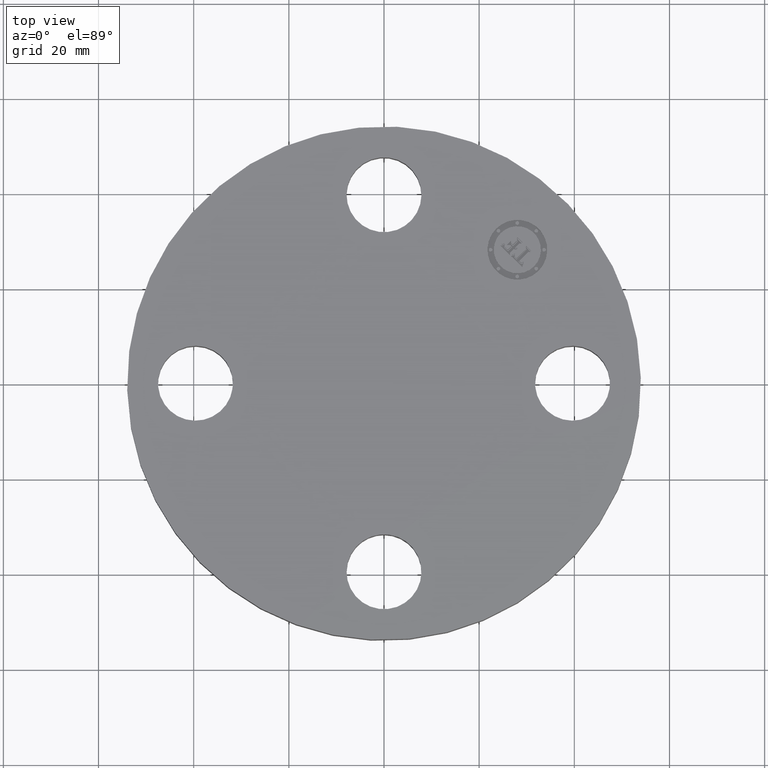
[diagram: clean part render]
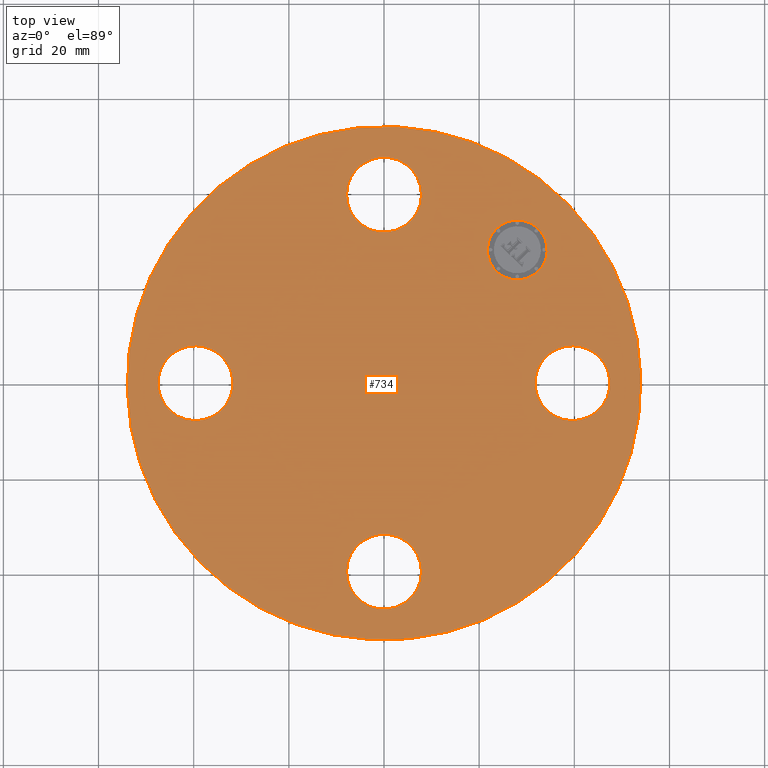
[diagram: same view with one face highlighted and labeled with its STEP entity id]
A machine part, top view. The second image highlights one B-rep face of the part: STEP entity #734.
In plain terms, the highlighted planar face has unit normal (0, 0, -1).
Its self-contained STEP definition (entity closure, byte-faithful):
#133=AXIS2_PLACEMENT_3D('Circle Axis2P3D',#131,#132,$) ;
#151=AXIS2_PLACEMENT_3D('Circle Axis2P3D',#149,#150,$) ;
#198=AXIS2_PLACEMENT_3D('Circle Axis2P3D',#196,#197,$) ;
#216=AXIS2_PLACEMENT_3D('Circle Axis2P3D',#214,#215,$) ;
#263=AXIS2_PLACEMENT_3D('Circle Axis2P3D',#261,#262,$) ;
#281=AXIS2_PLACEMENT_3D('Circle Axis2P3D',#279,#280,$) ;
#437=AXIS2_PLACEMENT_3D('Circle Axis2P3D',#435,#436,$) ;
#456=AXIS2_PLACEMENT_3D('Circle Axis2P3D',#454,#455,$) ;
#487=AXIS2_PLACEMENT_3D('Circle Axis2P3D',#485,#486,$) ;
#500=AXIS2_PLACEMENT_3D('Circle Axis2P3D',#498,#499,$) ;
#694=AXIS2_PLACEMENT_3D('Plane Axis2P3D',#691,#692,#693) ;
#718=AXIS2_PLACEMENT_3D('Circle Axis2P3D',#716,#717,$) ;
#727=AXIS2_PLACEMENT_3D('Circle Axis2P3D',#725,#726,$) ;
#107=CARTESIAN_POINT('Vertex',(-0.272050594187,-1.41137808304,0.500000000002)) ;
#128=CARTESIAN_POINT('Vertex',(0.272050594187,-1.70862191697,0.500000000002)) ;
#131=CARTESIAN_POINT('Axis2P3D Location',(1.91044721553E-016,-1.56000000001,0.500000000002)) ;
#149=CARTESIAN_POINT('Axis2P3D Location',(1.91044721553E-016,-1.56000000001,0.500000000002)) ;
#172=CARTESIAN_POINT('Vertex',(-1.41137808304,0.272050594187,0.500000000002)) ;
#193=CARTESIAN_POINT('Vertex',(-1.70862191697,-0.272050594187,0.500000000002)) ;
#196=CARTESIAN_POINT('Axis2P3D Location',(-1.56000000001,-2.86557886796E-016,0.500000000002)) ;
#214=CARTESIAN_POINT('Axis2P3D Location',(-1.56000000001,-2.86557886796E-016,0.500000000002)) ;
#237=CARTESIAN_POINT('Vertex',(1.41137808304,-0.272050594187,0.500000000002)) ;
#258=CARTESIAN_POINT('Vertex',(1.70862191697,0.272050594187,0.500000000002)) ;
#261=CARTESIAN_POINT('Axis2P3D Location',(1.56000000001,9.55192955985E-017,0.500000000002)) ;
#279=CARTESIAN_POINT('Axis2P3D Location',(1.56000000001,9.55192955985E-017,0.500000000002)) ;
#432=CARTESIAN_POINT('Vertex',(1.01877926954,1.86486294402,0.500000000002)) ;
#435=CARTESIAN_POINT('Axis2P3D Location',(0.,0.,0.500000000002)) ;
#439=CARTESIAN_POINT('Vertex',(-1.01877926954,-1.86486294402,0.500000000002)) ;
#454=CARTESIAN_POINT('Axis2P3D Location',(0.,0.,0.500000000002)) ;
#475=CARTESIAN_POINT('Vertex',(0.272050594187,1.41137808304,0.500000000002)) ;
#482=CARTESIAN_POINT('Vertex',(-0.272050594187,1.70862191697,0.500000000002)) ;
#485=CARTESIAN_POINT('Axis2P3D Location',(0.,1.56000000001,0.500000000002)) ;
#498=CARTESIAN_POINT('Axis2P3D Location',(0.,1.56000000001,0.500000000002)) ;
#691=CARTESIAN_POINT('Axis2P3D Location',(0.,2.12500000001,0.500000000002)) ;
#716=CARTESIAN_POINT('Axis2P3D Location',(1.10308657866,1.10308657866,0.500000000002)) ;
#720=CARTESIAN_POINT('Vertex',(0.928077650311,1.278095507,0.500000000002)) ;
#722=CARTESIAN_POINT('Vertex',(1.278095507,0.928077650311,0.500000000002)) ;
#725=CARTESIAN_POINT('Axis2P3D Location',(1.10308657866,1.10308657866,0.500000000002)) ;
#132=DIRECTION('Axis2P3D Direction',(-0.,0.,-0.0393700787402)) ;
#150=DIRECTION('Axis2P3D Direction',(-0.,0.,-0.0393700787402)) ;
#197=DIRECTION('Axis2P3D Direction',(0.,0.,-0.0393700787402)) ;
#215=DIRECTION('Axis2P3D Direction',(0.,0.,-0.0393700787402)) ;
#262=DIRECTION('Axis2P3D Direction',(0.,-0.,-0.0393700787402)) ;
#280=DIRECTION('Axis2P3D Direction',(0.,-0.,-0.0393700787402)) ;
#436=DIRECTION('Axis2P3D Direction',(0.,0.,-0.0393700787402)) ;
#455=DIRECTION('Axis2P3D Direction',(0.,0.,-0.0393700787402)) ;
#486=DIRECTION('Axis2P3D Direction',(0.,-0.,-0.0393700787402)) ;
#499=DIRECTION('Axis2P3D Direction',(0.,-0.,-0.0393700787402)) ;
#692=DIRECTION('Axis2P3D Direction',(0.,0.,-0.0393700787402)) ;
#693=DIRECTION('Axis2P3D XDirection',(0.0393700787402,0.,0.)) ;
#717=DIRECTION('Axis2P3D Direction',(0.,0.,-0.0393700787402)) ;
#726=DIRECTION('Axis2P3D Direction',(0.,0.,-0.0393700787402)) ;
#697=ORIENTED_EDGE('',*,*,#441,.F.) ;
#698=ORIENTED_EDGE('',*,*,#458,.F.) ;
#701=ORIENTED_EDGE('',*,*,#502,.T.) ;
#702=ORIENTED_EDGE('',*,*,#489,.T.) ;
#705=ORIENTED_EDGE('',*,*,#265,.T.) ;
#706=ORIENTED_EDGE('',*,*,#283,.T.) ;
#709=ORIENTED_EDGE('',*,*,#135,.T.) ;
#710=ORIENTED_EDGE('',*,*,#153,.T.) ;
#713=ORIENTED_EDGE('',*,*,#200,.T.) ;
#714=ORIENTED_EDGE('',*,*,#218,.T.) ;
#731=ORIENTED_EDGE('',*,*,#724,.T.) ;
#732=ORIENTED_EDGE('',*,*,#729,.T.) ;
#703=FACE_BOUND('',#700,.T.) ;
#707=FACE_BOUND('',#704,.T.) ;
#711=FACE_BOUND('',#708,.T.) ;
#715=FACE_BOUND('',#712,.T.) ;
#733=FACE_BOUND('',#730,.T.) ;
#734=ADVANCED_FACE('PartBody',(#699,#703,#707,#711,#715,#733),#695,.F.) ;
#134=CIRCLE('generated circle',#133,0.310000000001) ;
#152=CIRCLE('generated circle',#151,0.310000000001) ;
#199=CIRCLE('generated circle',#198,0.310000000001) ;
#217=CIRCLE('generated circle',#216,0.310000000001) ;
#264=CIRCLE('generated circle',#263,0.310000000001) ;
#282=CIRCLE('generated circle',#281,0.310000000001) ;
#438=CIRCLE('generated circle',#437,2.12500000001) ;
#457=CIRCLE('generated circle',#456,2.12500000001) ;
#488=CIRCLE('generated circle',#487,0.310000000001) ;
#501=CIRCLE('generated circle',#500,0.310000000001) ;
#719=CIRCLE('generated circle',#718,0.247500000001) ;
#728=CIRCLE('generated circle',#727,0.247500000001) ;
#135=EDGE_CURVE('',#108,#129,#134,.T.) ;
#153=EDGE_CURVE('',#129,#108,#152,.T.) ;
#200=EDGE_CURVE('',#173,#194,#199,.T.) ;
#218=EDGE_CURVE('',#194,#173,#217,.T.) ;
#265=EDGE_CURVE('',#238,#259,#264,.T.) ;
#283=EDGE_CURVE('',#259,#238,#282,.T.) ;
#441=EDGE_CURVE('',#433,#440,#438,.T.) ;
#458=EDGE_CURVE('',#440,#433,#457,.T.) ;
#489=EDGE_CURVE('',#476,#483,#488,.T.) ;
#502=EDGE_CURVE('',#483,#476,#501,.T.) ;
#724=EDGE_CURVE('',#721,#723,#719,.T.) ;
#729=EDGE_CURVE('',#723,#721,#728,.T.) ;
#696=EDGE_LOOP('',(#697,#698)) ;
#700=EDGE_LOOP('',(#701,#702)) ;
#704=EDGE_LOOP('',(#705,#706)) ;
#708=EDGE_LOOP('',(#709,#710)) ;
#712=EDGE_LOOP('',(#713,#714)) ;
#730=EDGE_LOOP('',(#731,#732)) ;
#699=FACE_OUTER_BOUND('',#696,.T.) ;
#695=PLANE('',#694) ;
#108=VERTEX_POINT('',#107) ;
#129=VERTEX_POINT('',#128) ;
#173=VERTEX_POINT('',#172) ;
#194=VERTEX_POINT('',#193) ;
#238=VERTEX_POINT('',#237) ;
#259=VERTEX_POINT('',#258) ;
#433=VERTEX_POINT('',#432) ;
#440=VERTEX_POINT('',#439) ;
#476=VERTEX_POINT('',#475) ;
#483=VERTEX_POINT('',#482) ;
#721=VERTEX_POINT('',#720) ;
#723=VERTEX_POINT('',#722) ;